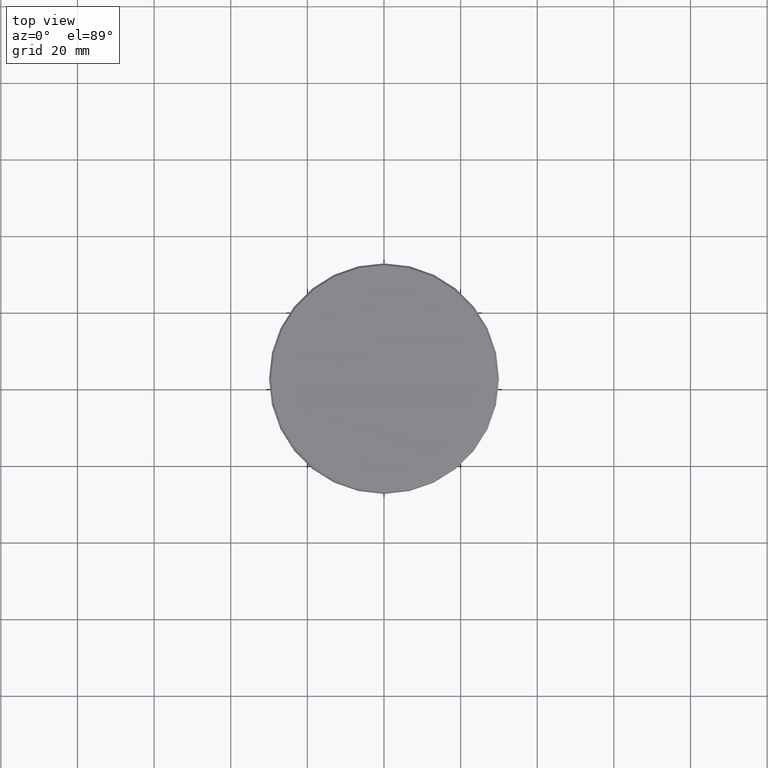
[diagram: clean part render]
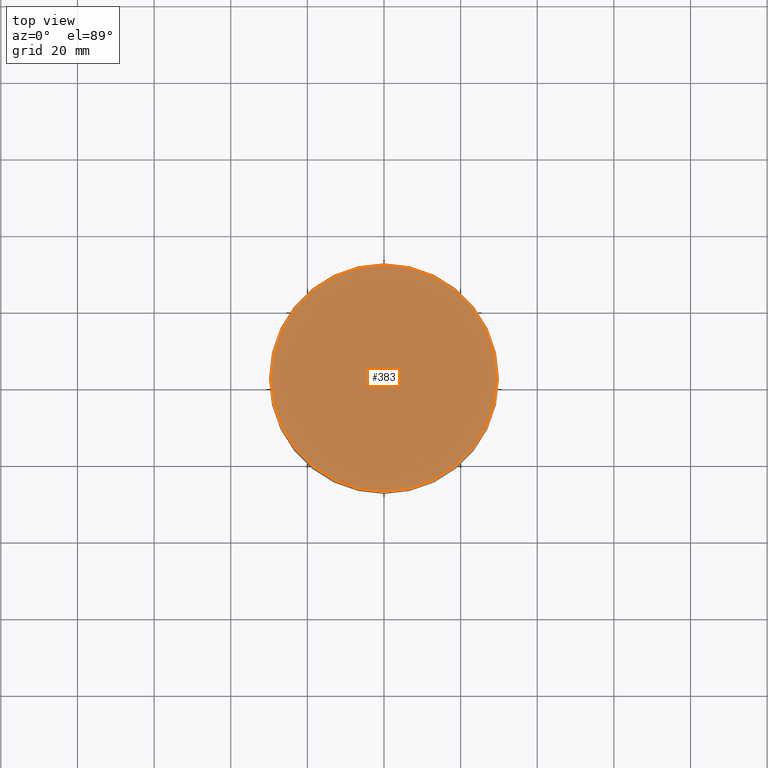
[diagram: same view with one face highlighted and labeled with its STEP entity id]
A machine part, top view. The second image highlights one B-rep face of the part: STEP entity #383.
In plain terms, the highlighted planar face has unit normal (0, -0, 1).
Its self-contained STEP definition (entity closure, byte-faithful):
#15 = AXIS2_PLACEMENT_3D ( 'NONE', #936, #940, #1023 ) ;
#170 = EDGE_CURVE ( 'NONE', #959, #357, #533, .T. ) ;
#318 = DIRECTION ( 'NONE',  ( 1.000000000000000000, 0.000000000000000000, 0.000000000000000000 ) ) ;
#357 = VERTEX_POINT ( 'NONE', #1062 ) ;
#383 = ADVANCED_FACE ( 'NONE', ( #500 ), #962, .T. ) ;
#395 = ORIENTED_EDGE ( 'NONE', *, *, #170, .T. ) ;
#397 = EDGE_CURVE ( 'NONE', #357, #959, #985, .T. ) ;
#500 = FACE_OUTER_BOUND ( 'NONE', #528, .T. ) ;
#508 = DIRECTION ( 'NONE',  ( 0.000000000000000000, -0.000000000000000000, 1.000000000000000000 ) ) ;
#528 = EDGE_LOOP ( 'NONE', ( #946, #395 ) ) ;
#533 = CIRCLE ( 'NONE', #15, 29.49999999999994316 ) ;
#612 = AXIS2_PLACEMENT_3D ( 'NONE', #692, #1133, #318 ) ;
#692 = CARTESIAN_POINT ( 'NONE',  ( 0.000000000000000000, 0.000000000000000000, 0.000000000000000000 ) ) ;
#873 = CARTESIAN_POINT ( 'NONE',  ( 0.000000000000000000, 0.000000000000000000, 0.000000000000000000 ) ) ;
#884 = DIRECTION ( 'NONE',  ( 1.000000000000000000, 0.000000000000000000, 0.000000000000000000 ) ) ;
#936 = CARTESIAN_POINT ( 'NONE',  ( 0.000000000000000000, 0.000000000000000000, 0.000000000000000000 ) ) ;
#940 = DIRECTION ( 'NONE',  ( -0.000000000000000000, -0.000000000000000000, 1.000000000000000000 ) ) ;
#946 = ORIENTED_EDGE ( 'NONE', *, *, #397, .T. ) ;
#959 = VERTEX_POINT ( 'NONE', #1177 ) ;
#962 = PLANE ( 'NONE',  #1024 ) ;
#985 = CIRCLE ( 'NONE', #612, 29.49999999999994316 ) ;
#1023 = DIRECTION ( 'NONE',  ( 1.000000000000000000, 0.000000000000000000, 0.000000000000000000 ) ) ;
#1024 = AXIS2_PLACEMENT_3D ( 'NONE', #873, #508, #884 ) ;
#1062 = CARTESIAN_POINT ( 'NONE',  ( -29.49999999999994316, 0.000000000000000000, 0.000000000000000000 ) ) ;
#1133 = DIRECTION ( 'NONE',  ( -0.000000000000000000, -0.000000000000000000, 1.000000000000000000 ) ) ;
#1177 = CARTESIAN_POINT ( 'NONE',  ( 29.49999999999994316, 3.643324227463372235E-15, 0.000000000000000000 ) ) ;